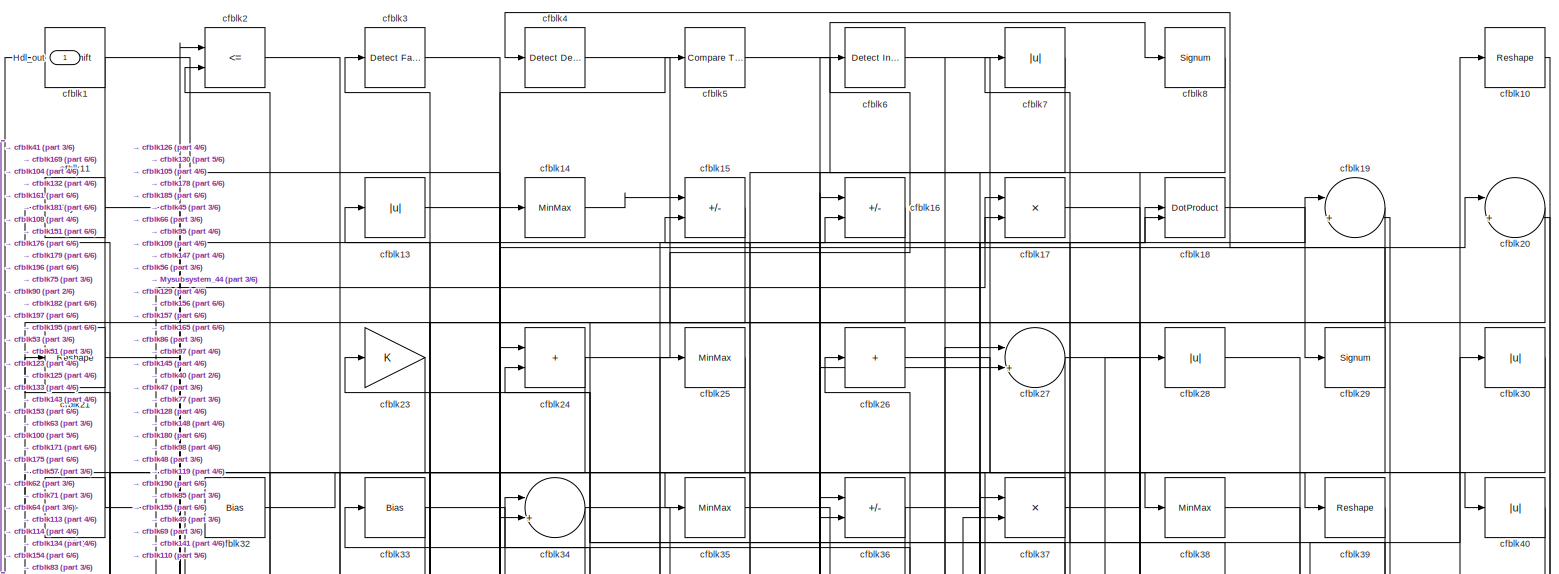
[diagram: root canvas - part 1/6, full width, top band]
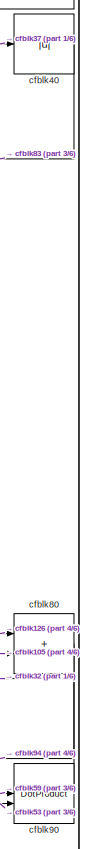
[diagram: root canvas - part 2/6, top right region]
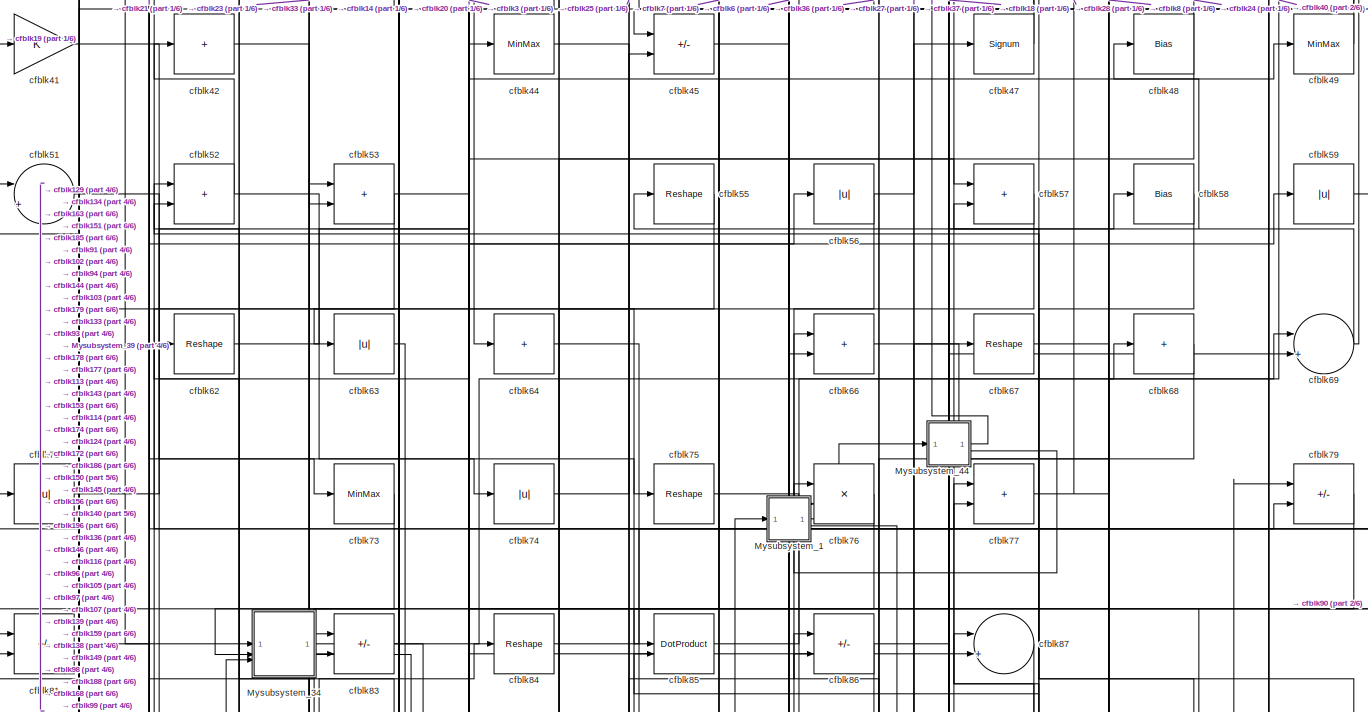
[diagram: root canvas - part 3/6, full width, top band]
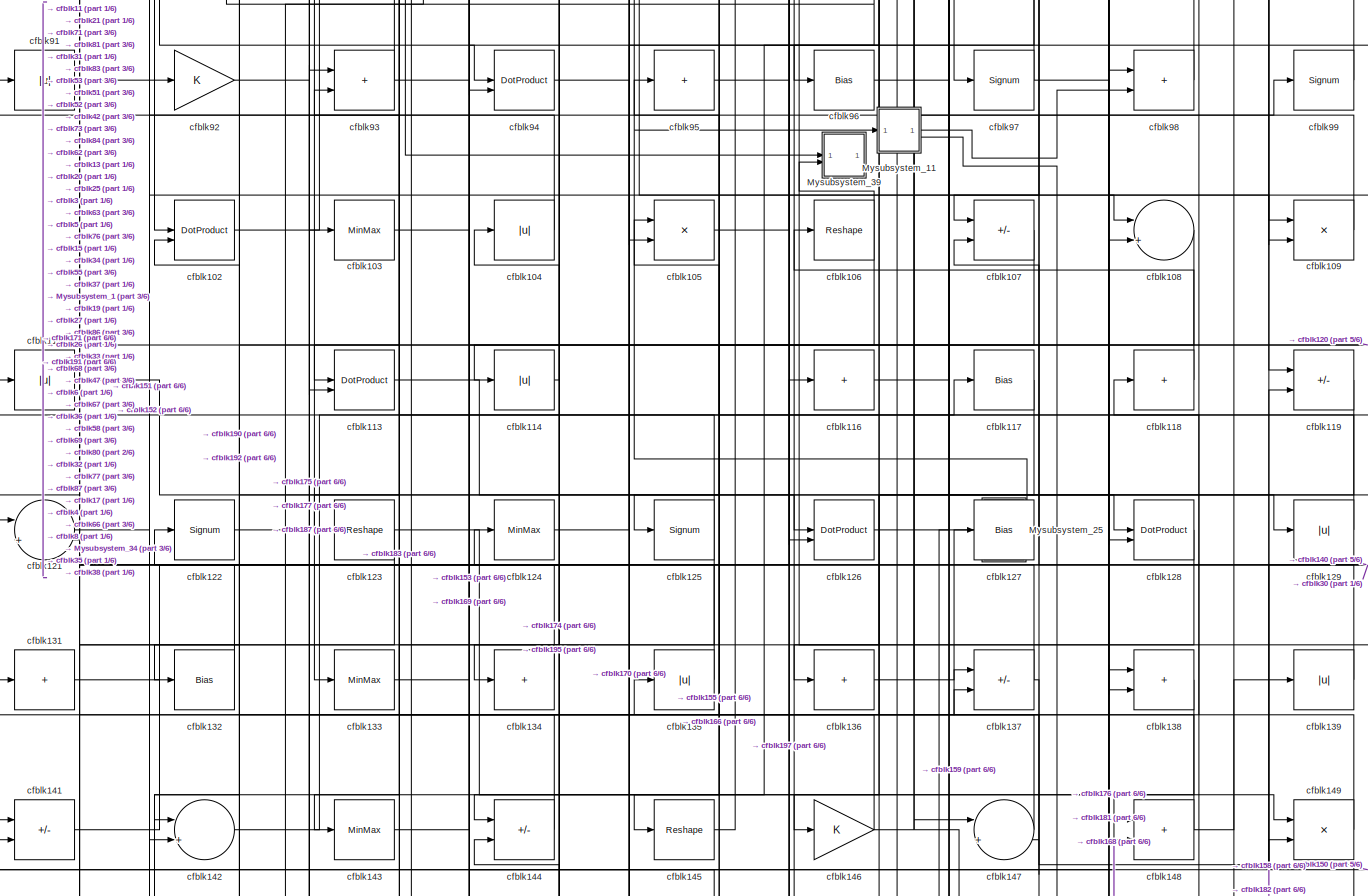
[diagram: root canvas - part 4/6, full width, middle band]
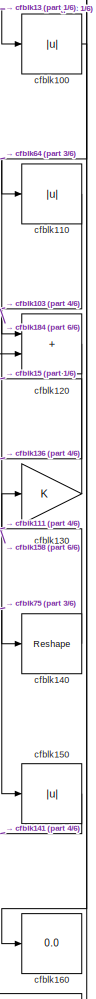
[diagram: root canvas - part 5/6, middle right region]
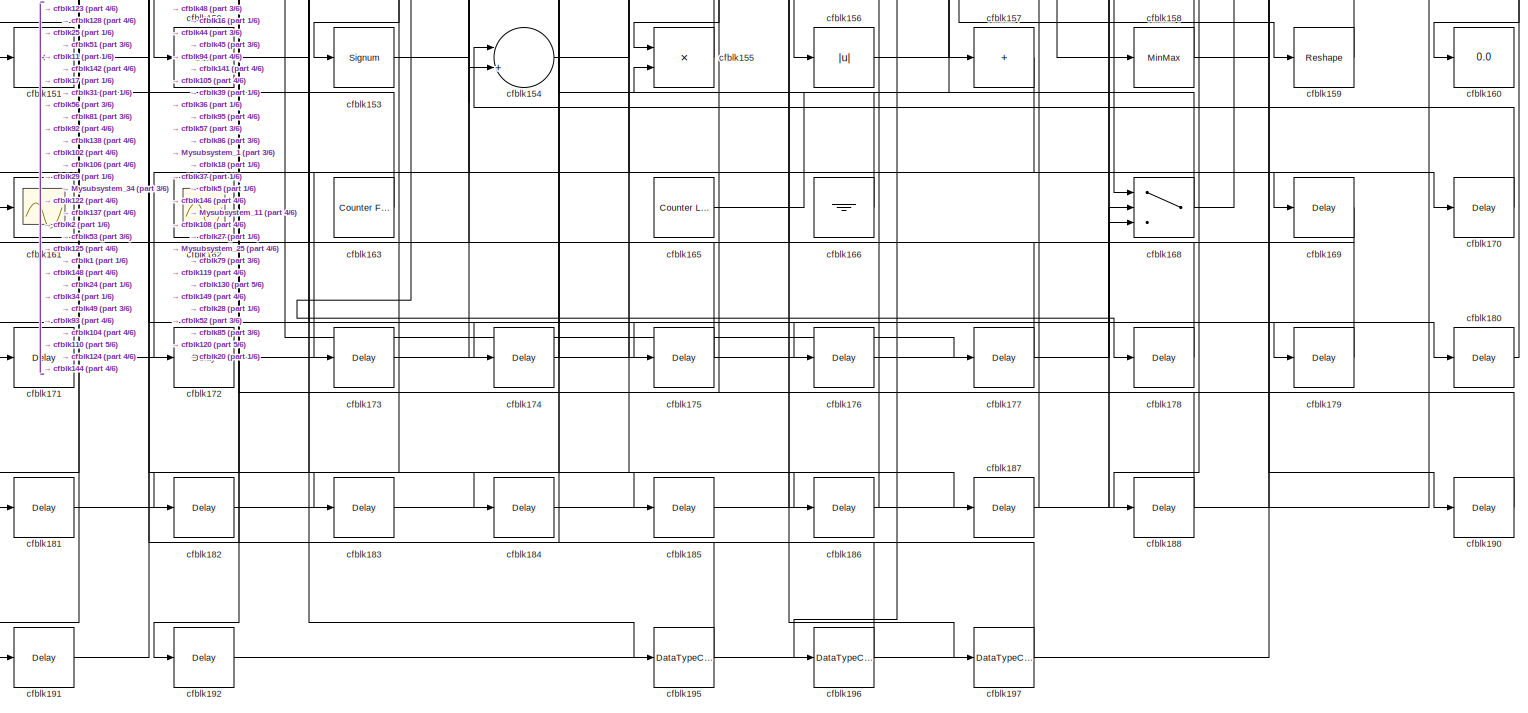
[diagram: root canvas - part 6/6, full width, bottom band]
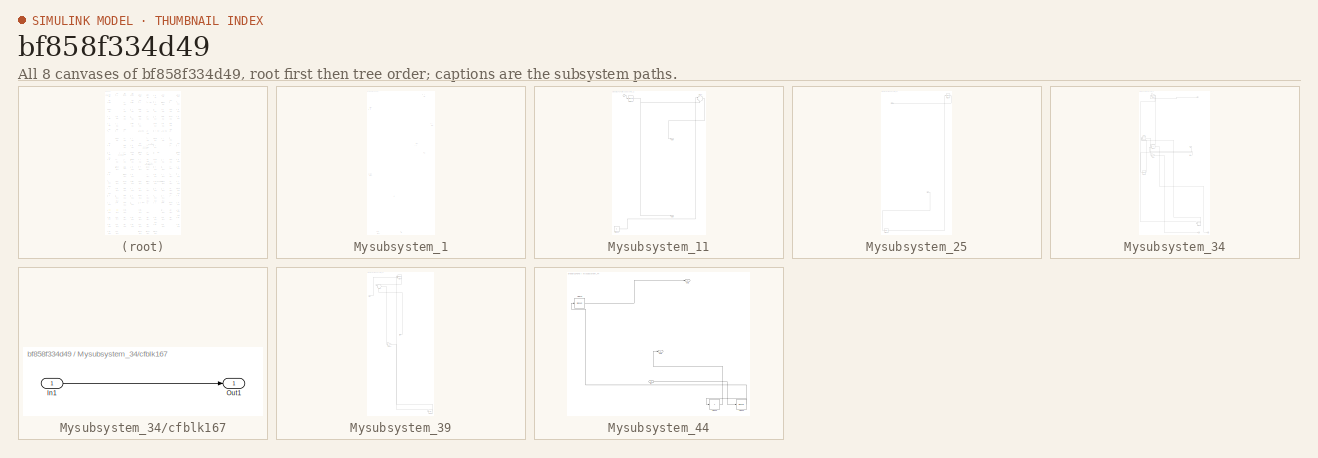
[diagram: thumbnail index - all 8 canvases of the model, root first then tree order]
MODEL slx_bf858f334d49
KIND model
CONFIG AbsTol = auto
CONFIG EnableMultiTasking = off
CONFIG FixedStep = auto
CONFIG MaxStep = auto
CONFIG MinStep = auto
CONFIG RelTol = 1e-3
CONFIG SampleTimeConstraint = Unconstrained
CONFIG SolverName = VariableStepAuto
CONFIG StartTime = 0.0
CONFIG StopTime = 10.0
BLOCK [Outport] Hdl_out
  OutDataTypeStr = uint8
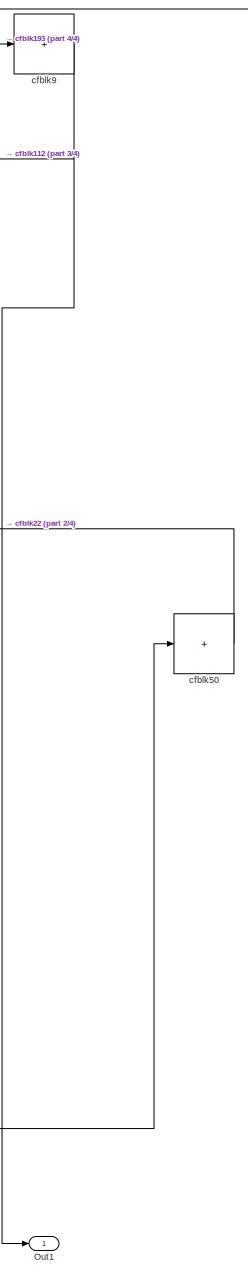
[diagram: Mysubsystem_1 - part 1/4, top right region]
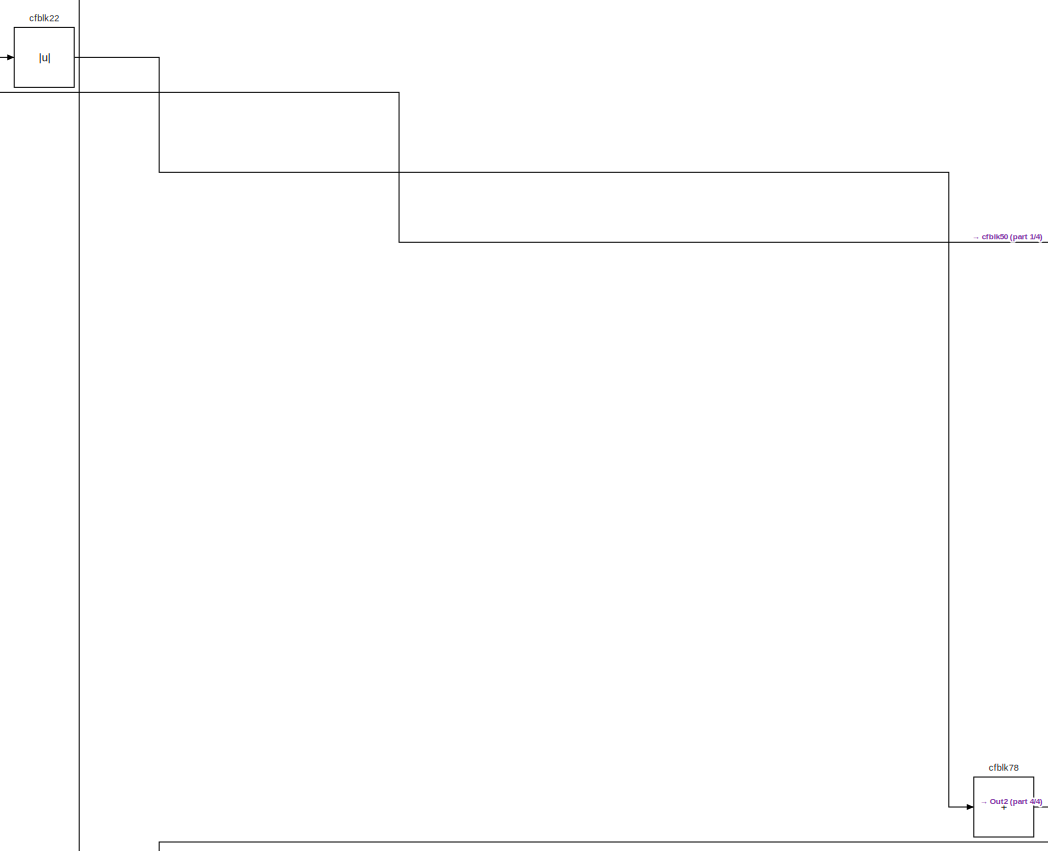
[diagram: Mysubsystem_1 - part 2/4, full width, top band]
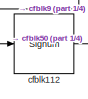
[diagram: Mysubsystem_1 - part 3/4, middle left region]
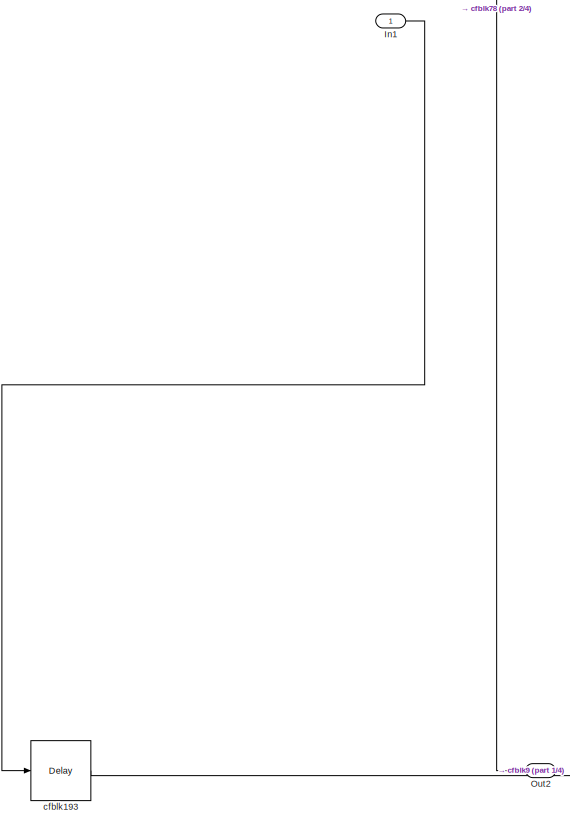
[diagram: Mysubsystem_1 - part 4/4, bottom left region]
BLOCK [SubSystem] Mysubsystem_1
  RTWFcnName = Mysubsystem_1
  RTWFcnNameOpts = User specified
  RTWFileNameOpts = Use function name
  RTWSystemCode = Reusable function
  TreatAsAtomicUnit = on
BLOCK [Inport] Mysubsystem_1/In1
BLOCK [Outport] Mysubsystem_1/Out1
BLOCK [Outport] Mysubsystem_1/Out2
  Port = 2
BLOCK [Signum] Mysubsystem_1/cfblk112
BLOCK [Delay] Mysubsystem_1/cfblk193
  InputPortMap = u0
  SampleTime = 1
BLOCK [Abs] Mysubsystem_1/cfblk22
  SaturateOnIntegerOverflow = off
BLOCK [Sum] Mysubsystem_1/cfblk50
  IconShape = rectangular
  Inputs = +
BLOCK [Sum] Mysubsystem_1/cfblk78
  IconShape = rectangular
  Inputs = +
BLOCK [Sum] Mysubsystem_1/cfblk9
  IconShape = rectangular
  Inputs = +
BLOCK [SubSystem] Mysubsystem_11
  RTWFcnName = Mysubsystem_11
  RTWFcnNameOpts = User specified
  RTWFileNameOpts = Use function name
  RTWSystemCode = Reusable function
  TreatAsAtomicUnit = on
BLOCK [Inport] Mysubsystem_11/In1
BLOCK [Outport] Mysubsystem_11/Out1
BLOCK [Outport] Mysubsystem_11/Out2
  Port = 2
BLOCK [Constant] Mysubsystem_11/cfblk164
  SampleTime = -1
BLOCK [Signum] Mysubsystem_11/cfblk65
BLOCK [Sum] Mysubsystem_11/cfblk70
  Inputs = |++
BLOCK [SubSystem] Mysubsystem_25
  RTWFcnName = Mysubsystem_25
  RTWFcnNameOpts = User specified
  RTWFileNameOpts = Use function name
  RTWSystemCode = Reusable function
  TreatAsAtomicUnit = on
BLOCK [Inport] Mysubsystem_25/In1
BLOCK [Outport] Mysubsystem_25/Out1
BLOCK [Delay] Mysubsystem_25/cfblk194
  InputPortMap = u0
  SampleTime = 1
BLOCK [Signum] Mysubsystem_25/cfblk60
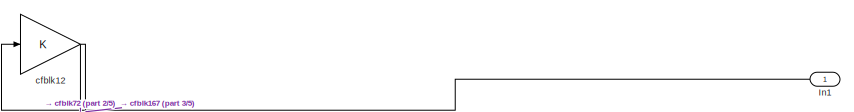
[diagram: Mysubsystem_34 - part 1/5, top center region]
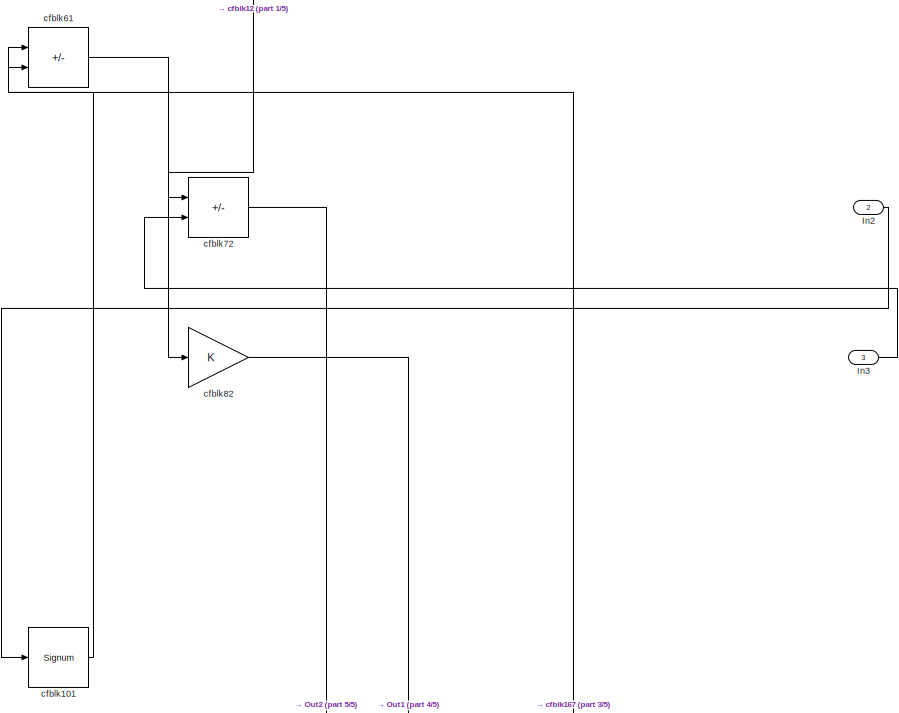
[diagram: Mysubsystem_34 - part 2/5, central region]
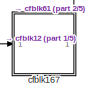
[diagram: Mysubsystem_34 - part 3/5, bottom right region]
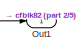
[diagram: Mysubsystem_34 - part 4/5, bottom right region]
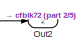
[diagram: Mysubsystem_34 - part 5/5, bottom right region]
BLOCK [SubSystem] Mysubsystem_34
  RTWFcnName = Mysubsystem_34
  RTWFcnNameOpts = User specified
  RTWFileNameOpts = Use function name
  RTWSystemCode = Reusable function
  TreatAsAtomicUnit = on
BLOCK [Inport] Mysubsystem_34/In1
BLOCK [Inport] Mysubsystem_34/In2
  Port = 2
BLOCK [Inport] Mysubsystem_34/In3
  Port = 3
BLOCK [Outport] Mysubsystem_34/Out1
BLOCK [Outport] Mysubsystem_34/Out2
  Port = 2
BLOCK [Signum] Mysubsystem_34/cfblk101
BLOCK [Gain] Mysubsystem_34/cfblk12
BLOCK [SubSystem] Mysubsystem_34/cfblk167
  LibrarySourceBlock = hdlsllib/Ports &\nSubsystems/Subsystem
BLOCK [Inport] Mysubsystem_34/cfblk167/In1
BLOCK [Outport] Mysubsystem_34/cfblk167/Out1
BLOCK [Sum] Mysubsystem_34/cfblk61
  IconShape = rectangular
  Inputs = +-
BLOCK [Sum] Mysubsystem_34/cfblk72
  IconShape = rectangular
  Inputs = +-
BLOCK [Gain] Mysubsystem_34/cfblk82
BLOCK [SubSystem] Mysubsystem_39
  RTWFcnName = Mysubsystem_39
  RTWFcnNameOpts = User specified
  RTWFileNameOpts = Use function name
  RTWSystemCode = Reusable function
  TreatAsAtomicUnit = on
BLOCK [Inport] Mysubsystem_39/In1
BLOCK [Inport] Mysubsystem_39/In2
  Port = 2
BLOCK [Gain] Mysubsystem_39/cfblk115
BLOCK [Delay] Mysubsystem_39/cfblk189
  InputPortMap = u0
  SampleTime = 1
BLOCK [DotProduct] Mysubsystem_39/cfblk46
  OutDataTypeStr = Inherit: Inherit via internal rule
BLOCK [Sum] Mysubsystem_39/cfblk54
  Inputs = |++
BLOCK [SubSystem] Mysubsystem_44
  RTWFcnName = Mysubsystem_44
  RTWFcnNameOpts = User specified
  RTWFileNameOpts = Use function name
  RTWSystemCode = Reusable function
  TreatAsAtomicUnit = on
BLOCK [Inport] Mysubsystem_44/In1
BLOCK [Outport] Mysubsystem_44/Out1
BLOCK [Outport] Mysubsystem_44/Out2
  Port = 2
BLOCK [Signum] Mysubsystem_44/cfblk43
BLOCK [Sum] Mysubsystem_44/cfblk88
  IconShape = rectangular
  Inputs = +
BLOCK [Signum] Mysubsystem_44/cfblk89
BLOCK [Reference] cfblk1  REF=hdlsllib/Logic and Bit
Operations/Bit Shift
  SourceBlock = hdlsllib/Logic and Bit\nOperations/Bit Shift
  SourceType = Bit Shift
BLOCK [Reshape] cfblk10
BLOCK [Abs] cfblk100
  OutDataTypeStr = uint8
  SaturateOnIntegerOverflow = off
BLOCK [DotProduct] cfblk102
  OutDataTypeStr = uint8
BLOCK [MinMax] cfblk103
  OutDataTypeStr = uint8
BLOCK [Abs] cfblk104
  OutDataTypeStr = uint8
  SaturateOnIntegerOverflow = off
BLOCK [Product] cfblk105
  Inputs = */
  OutDataTypeStr = uint8
  RndMeth = Zero
  SaturateOnIntegerOverflow = on
BLOCK [Reshape] cfblk106
BLOCK [Sum] cfblk107
  IconShape = rectangular
  Inputs = +-
  OutDataTypeStr = uint8
BLOCK [Sum] cfblk108
  Inputs = |++
  OutDataTypeStr = uint8
BLOCK [Product] cfblk109
  Inputs = */
  OutDataTypeStr = uint8
  RndMeth = Zero
  SaturateOnIntegerOverflow = on
BLOCK [Signum] cfblk11
BLOCK [Abs] cfblk110
  OutDataTypeStr = uint8
  SaturateOnIntegerOverflow = off
BLOCK [Abs] cfblk111
  OutDataTypeStr = uint8
  SaturateOnIntegerOverflow = off
BLOCK [DotProduct] cfblk113
  OutDataTypeStr = uint8
BLOCK [Abs] cfblk114
  OutDataTypeStr = uint8
  SaturateOnIntegerOverflow = off
BLOCK [Sum] cfblk116
  IconShape = rectangular
  Inputs = +
  OutDataTypeStr = uint8
BLOCK [Bias] cfblk117
  Bias = 0.0
  SaturateOnIntegerOverflow = off
BLOCK [Sum] cfblk118
  IconShape = rectangular
  Inputs = +
  OutDataTypeStr = uint8
BLOCK [Sum] cfblk119
  IconShape = rectangular
  Inputs = +-
  OutDataTypeStr = uint8
BLOCK [Sum] cfblk120
  IconShape = rectangular
  OutDataTypeStr = uint8
BLOCK [Sum] cfblk121
  Inputs = |++
  OutDataTypeStr = uint8
BLOCK [Signum] cfblk122
BLOCK [Reshape] cfblk123
BLOCK [MinMax] cfblk124
  OutDataTypeStr = uint8
BLOCK [Signum] cfblk125
BLOCK [DotProduct] cfblk126
  OutDataTypeStr = uint8
BLOCK [Bias] cfblk127
  Bias = 0.0
  SaturateOnIntegerOverflow = off
BLOCK [DotProduct] cfblk128
  OutDataTypeStr = uint8
BLOCK [Abs] cfblk129
  OutDataTypeStr = uint8
  SaturateOnIntegerOverflow = off
BLOCK [Abs] cfblk13
  OutDataTypeStr = uint8
  SaturateOnIntegerOverflow = off
BLOCK [Gain] cfblk130
  OutDataTypeStr = uint8
BLOCK [Sum] cfblk131
  IconShape = rectangular
  Inputs = +
  OutDataTypeStr = uint8
BLOCK [Bias] cfblk132
  Bias = 0.0
  SaturateOnIntegerOverflow = off
BLOCK [MinMax] cfblk133
  OutDataTypeStr = uint8
BLOCK [Sum] cfblk134
  IconShape = rectangular
  Inputs = +
  OutDataTypeStr = uint8
BLOCK [Abs] cfblk135
  OutDataTypeStr = uint8
  SaturateOnIntegerOverflow = off
BLOCK [Sum] cfblk136
  IconShape = rectangular
  Inputs = +
  OutDataTypeStr = uint8
BLOCK [Sum] cfblk137
  IconShape = rectangular
  Inputs = +-
  OutDataTypeStr = uint8
BLOCK [Sum] cfblk138
  IconShape = rectangular
  OutDataTypeStr = uint8
BLOCK [Abs] cfblk139
  OutDataTypeStr = uint8
  SaturateOnIntegerOverflow = off
BLOCK [MinMax] cfblk14
  OutDataTypeStr = uint8
BLOCK [Reshape] cfblk140
BLOCK [Sum] cfblk141
  IconShape = rectangular
  Inputs = +-
  OutDataTypeStr = uint8
BLOCK [Sum] cfblk142
  Inputs = |++
  OutDataTypeStr = uint8
BLOCK [MinMax] cfblk143
  OutDataTypeStr = uint8
BLOCK [Sum] cfblk144
  IconShape = rectangular
  Inputs = +-
  OutDataTypeStr = uint8
BLOCK [Reshape] cfblk145
BLOCK [Gain] cfblk146
  OutDataTypeStr = uint8
BLOCK [Sum] cfblk147
  Inputs = |++
  OutDataTypeStr = uint8
BLOCK [Sum] cfblk148
  IconShape = rectangular
  OutDataTypeStr = uint8
BLOCK [Product] cfblk149
  Inputs = */
  OutDataTypeStr = uint8
  RndMeth = Zero
  SaturateOnIntegerOverflow = on
BLOCK [Sum] cfblk15
  IconShape = rectangular
  Inputs = +-
  OutDataTypeStr = uint8
BLOCK [Abs] cfblk150
  OutDataTypeStr = uint8
  SaturateOnIntegerOverflow = off
BLOCK [Sum] cfblk151
  IconShape = rectangular
  Inputs = +
  OutDataTypeStr = uint8
BLOCK [Bias] cfblk152
  Bias = 0.0
  SaturateOnIntegerOverflow = off
BLOCK [Signum] cfblk153
BLOCK [Sum] cfblk154
  Inputs = |++
  OutDataTypeStr = uint8
BLOCK [Product] cfblk155
  Inputs = */
  OutDataTypeStr = uint8
  RndMeth = Zero
  SaturateOnIntegerOverflow = on
BLOCK [Abs] cfblk156
  OutDataTypeStr = uint8
  SaturateOnIntegerOverflow = off
BLOCK [Sum] cfblk157
  IconShape = rectangular
  Inputs = +
  OutDataTypeStr = uint8
BLOCK [MinMax] cfblk158
  OutDataTypeStr = uint8
BLOCK [Reshape] cfblk159
BLOCK [Sum] cfblk16
  IconShape = rectangular
  Inputs = +-
  OutDataTypeStr = uint8
BLOCK [Display] cfblk160
  Decimation = 1
BLOCK [Scope] cfblk161
  Floating = off
  NumInputPorts = 1
  ScopeSpecificationString = Simulink.scopes.TimeScopeBlockCfg('CurrentConfiguration', extmgr.ConfigurationSet(extmgr.Configuration('Core','General UI',true),extmgr.Configuration('Core','Source UI',true),extmgr.Configuration('Sources','WiredSimulink',true,'DataLoggingVariableName','ScopeData2','DataLoggingSaveFormat','Array','DataLoggingLimitDataPoints',true,'DataLoggingDecimation','1'),extmgr.Configuration('Visuals','Time Do...<+868ch>
BLOCK [Scope] cfblk162
  Floating = on
  NumInputPorts = 1
  ScopeSpecificationString = Simulink.scopes.TimeScopeBlockCfg('CurrentConfiguration', extmgr.ConfigurationSet(extmgr.Configuration('Core','General UI',true,'FigureColor',[0.156862745098039 0.156862745098039 0.156862745098039]),extmgr.Configuration('Core','Source UI',true),extmgr.Configuration('Sources','WiredSimulink',true,'DataLoggingVariableName','ScopeData1','DataLoggingSaveFormat','StructureWithTime','DataLoggingLimitDat...<+2713ch>
BLOCK [Reference] cfblk163  REF=hdlsllib/Sources/Counter
Free-Running
  SourceBlock = hdlsllib/Sources/Counter\nFree-Running
  SourceType = Counter Free-Running
BLOCK [Reference] cfblk165  REF=hdlsllib/Sources/Counter
Limited
  SourceBlock = hdlsllib/Sources/Counter\nLimited
  SourceType = Counter Limited
BLOCK [Ground] cfblk166
BLOCK [Switch] cfblk168
  InputSameDT = off
  OutDataTypeStr = uint8
  SaturateOnIntegerOverflow = off
BLOCK [Delay] cfblk169
  InputPortMap = u0
  SampleTime = 1
BLOCK [Product] cfblk17
  Inputs = */
  OutDataTypeStr = uint8
  RndMeth = Zero
  SaturateOnIntegerOverflow = on
BLOCK [Delay] cfblk170
  InputPortMap = u0
  SampleTime = 1
BLOCK [Delay] cfblk171
  InputPortMap = u0
  SampleTime = 1
BLOCK [Delay] cfblk172
  InputPortMap = u0
  SampleTime = 1
BLOCK [Delay] cfblk173
  InputPortMap = u0
  SampleTime = 1
BLOCK [Delay] cfblk174
  InputPortMap = u0
  SampleTime = 1
BLOCK [Delay] cfblk175
  InputPortMap = u0
  SampleTime = 1
BLOCK [Delay] cfblk176
  InputPortMap = u0
  SampleTime = 1
BLOCK [Delay] cfblk177
  InputPortMap = u0
  SampleTime = 1
BLOCK [Delay] cfblk178
  InputPortMap = u0
  SampleTime = 1
BLOCK [Delay] cfblk179
  InputPortMap = u0
  SampleTime = 1
BLOCK [DotProduct] cfblk18
  OutDataTypeStr = uint8
BLOCK [Delay] cfblk180
  InputPortMap = u0
  SampleTime = 1
BLOCK [Delay] cfblk181
  InputPortMap = u0
  SampleTime = 1
BLOCK [Delay] cfblk182
  InputPortMap = u0
  SampleTime = 1
BLOCK [Delay] cfblk183
  InputPortMap = u0
  SampleTime = 1
BLOCK [Delay] cfblk184
  InputPortMap = u0
  SampleTime = 1
BLOCK [Delay] cfblk185
  InputPortMap = u0
  SampleTime = 1
BLOCK [Delay] cfblk186
  InputPortMap = u0
  SampleTime = 1
BLOCK [Delay] cfblk187
  InputPortMap = u0
  SampleTime = 1
BLOCK [Delay] cfblk188
  InputPortMap = u0
  SampleTime = 1
BLOCK [Sum] cfblk19
  Inputs = |++
  OutDataTypeStr = uint8
BLOCK [Delay] cfblk190
  InputPortMap = u0
  SampleTime = 1
BLOCK [Delay] cfblk191
  InputPortMap = u0
  SampleTime = 1
BLOCK [Delay] cfblk192
  InputPortMap = u0
  SampleTime = 1
BLOCK [DataTypeConversion] cfblk195
  OutDataTypeStr = uint8
  RndMeth = Floor
  SaturateOnIntegerOverflow = off
BLOCK [DataTypeConversion] cfblk196
  OutDataTypeStr = uint8
  RndMeth = Floor
  SaturateOnIntegerOverflow = off
BLOCK [DataTypeConversion] cfblk197
  OutDataTypeStr = uint8
  RndMeth = Floor
  SaturateOnIntegerOverflow = off
BLOCK [RelationalOperator] cfblk2
  InputSameDT = off
  Operator = <=
  OutDataTypeStr = boolean
BLOCK [Sum] cfblk20
  Inputs = |++
  OutDataTypeStr = uint8
BLOCK [Reshape] cfblk21
BLOCK [Gain] cfblk23
  OutDataTypeStr = uint8
BLOCK [Sum] cfblk24
  IconShape = rectangular
  OutDataTypeStr = uint8
BLOCK [MinMax] cfblk25
  OutDataTypeStr = uint8
BLOCK [Sum] cfblk26
  IconShape = rectangular
  Inputs = +
  OutDataTypeStr = uint8
BLOCK [Sum] cfblk27
  Inputs = |++
  OutDataTypeStr = uint8
BLOCK [Abs] cfblk28
  OutDataTypeStr = uint8
  SaturateOnIntegerOverflow = off
BLOCK [Signum] cfblk29
BLOCK [Reference] cfblk3  REF=hdlsllib/Logic and Bit
Operations/Detect Fall
Nonpositive
  SourceBlock = hdlsllib/Logic and Bit\nOperations/Detect Fall\nNonpositive
  SourceType = Detect Fall Nonpositive
BLOCK [Abs] cfblk30
  OutDataTypeStr = uint8
  SaturateOnIntegerOverflow = off
BLOCK [Sum] cfblk31
  IconShape = rectangular
  Inputs = +
  OutDataTypeStr = uint8
BLOCK [Bias] cfblk32
  Bias = 0.0
  SaturateOnIntegerOverflow = off
BLOCK [Bias] cfblk33
  Bias = 0.0
  SaturateOnIntegerOverflow = off
BLOCK [Sum] cfblk34
  Inputs = |++
  OutDataTypeStr = uint8
BLOCK [MinMax] cfblk35
  OutDataTypeStr = uint8
BLOCK [Sum] cfblk36
  IconShape = rectangular
  Inputs = +-
  OutDataTypeStr = uint8
BLOCK [Product] cfblk37
  Inputs = */
  OutDataTypeStr = uint8
  RndMeth = Zero
  SaturateOnIntegerOverflow = on
BLOCK [MinMax] cfblk38
  OutDataTypeStr = uint8
BLOCK [Reshape] cfblk39
BLOCK [Reference] cfblk4  REF=simulink/Logic and Bit
Operations/Detect
Decrease
  LibrarySourceBlock = hdlsllib/Logic and Bit\nOperations/Detect\nDecrease
  SourceBlock = simulink/Logic and Bit\nOperations/Detect\nDecrease
  SourceType = Detect Decrease
BLOCK [Abs] cfblk40
  OutDataTypeStr = uint8
  SaturateOnIntegerOverflow = off
BLOCK [Gain] cfblk41
  OutDataTypeStr = uint8
BLOCK [Sum] cfblk42
  IconShape = rectangular
  Inputs = +
  OutDataTypeStr = uint8
BLOCK [MinMax] cfblk44
  OutDataTypeStr = uint8
BLOCK [Sum] cfblk45
  IconShape = rectangular
  Inputs = +-
  OutDataTypeStr = uint8
BLOCK [Signum] cfblk47
BLOCK [Bias] cfblk48
  Bias = 0.0
  SaturateOnIntegerOverflow = off
BLOCK [MinMax] cfblk49
  OutDataTypeStr = uint8
BLOCK [Reference] cfblk5  REF=hdlsllib/Logic and Bit
Operations/Compare
To Constant
  SourceBlock = hdlsllib/Logic and Bit\nOperations/Compare\nTo Constant
  SourceType = Compare To Constant
BLOCK [Sum] cfblk51
  Inputs = |++
  OutDataTypeStr = uint8
BLOCK [Sum] cfblk52
  IconShape = rectangular
  OutDataTypeStr = uint8
BLOCK [Sum] cfblk53
  IconShape = rectangular
  OutDataTypeStr = uint8
BLOCK [Reshape] cfblk55
BLOCK [Abs] cfblk56
  OutDataTypeStr = uint8
  SaturateOnIntegerOverflow = off
BLOCK [Sum] cfblk57
  IconShape = rectangular
  OutDataTypeStr = uint8
BLOCK [Bias] cfblk58
  Bias = 0.0
  SaturateOnIntegerOverflow = off
BLOCK [Abs] cfblk59
  OutDataTypeStr = uint8
  SaturateOnIntegerOverflow = off
BLOCK [Reference] cfblk6  REF=simulink/Logic and Bit
Operations/Detect
Increase
  LibrarySourceBlock = hdlsllib/Logic and Bit\nOperations/Detect\nIncrease
  SourceBlock = simulink/Logic and Bit\nOperations/Detect\nIncrease
  SourceType = Detect Increase
BLOCK [Reshape] cfblk62
BLOCK [Abs] cfblk63
  OutDataTypeStr = uint8
  SaturateOnIntegerOverflow = off
BLOCK [Sum] cfblk64
  IconShape = rectangular
  Inputs = +
  OutDataTypeStr = uint8
BLOCK [Sum] cfblk66
  IconShape = rectangular
  OutDataTypeStr = uint8
BLOCK [Reshape] cfblk67
BLOCK [Sum] cfblk68
  IconShape = rectangular
  Inputs = +
  OutDataTypeStr = uint8
BLOCK [Sum] cfblk69
  Inputs = |++
  OutDataTypeStr = uint8
BLOCK [Abs] cfblk7
  OutDataTypeStr = uint8
  SaturateOnIntegerOverflow = off
BLOCK [Abs] cfblk71
  OutDataTypeStr = uint8
  SaturateOnIntegerOverflow = off
BLOCK [MinMax] cfblk73
  OutDataTypeStr = uint8
BLOCK [Abs] cfblk74
  OutDataTypeStr = uint8
  SaturateOnIntegerOverflow = off
BLOCK [Reshape] cfblk75
BLOCK [Product] cfblk76
  Inputs = */
  OutDataTypeStr = uint8
  RndMeth = Zero
  SaturateOnIntegerOverflow = on
BLOCK [Sum] cfblk77
  IconShape = rectangular
  OutDataTypeStr = uint8
BLOCK [Sum] cfblk79
  IconShape = rectangular
  Inputs = +-
  OutDataTypeStr = uint8
BLOCK [Signum] cfblk8
BLOCK [Sum] cfblk80
  IconShape = rectangular
  OutDataTypeStr = uint8
BLOCK [Sum] cfblk81
  IconShape = rectangular
  Inputs = +-
  OutDataTypeStr = uint8
BLOCK [Sum] cfblk83
  IconShape = rectangular
  Inputs = +-
  OutDataTypeStr = uint8
BLOCK [Reshape] cfblk84
BLOCK [DotProduct] cfblk85
  OutDataTypeStr = uint8
BLOCK [Sum] cfblk86
  IconShape = rectangular
  Inputs = +-
  OutDataTypeStr = uint8
BLOCK [Sum] cfblk87
  Inputs = |++
  OutDataTypeStr = uint8
BLOCK [DotProduct] cfblk90
  OutDataTypeStr = uint8
BLOCK [Abs] cfblk91
  OutDataTypeStr = uint8
  SaturateOnIntegerOverflow = off
BLOCK [Gain] cfblk92
  OutDataTypeStr = uint8
BLOCK [Sum] cfblk93
  IconShape = rectangular
  OutDataTypeStr = uint8
BLOCK [DotProduct] cfblk94
  OutDataTypeStr = uint8
BLOCK [Sum] cfblk95
  IconShape = rectangular
  Inputs = +
  OutDataTypeStr = uint8
BLOCK [Bias] cfblk96
  Bias = 0.0
  SaturateOnIntegerOverflow = off
BLOCK [Signum] cfblk97
BLOCK [Sum] cfblk98
  IconShape = rectangular
  OutDataTypeStr = uint8
BLOCK [Signum] cfblk99
LINE Mysubsystem_1/In1:1 -> Mysubsystem_1/cfblk193:1
LINE Mysubsystem_1/cfblk112:1 -> Mysubsystem_1/cfblk50:1
LINE Mysubsystem_1/cfblk193:1 -> Mysubsystem_1/cfblk9:1
LINE Mysubsystem_1/cfblk22:1 -> Mysubsystem_1/cfblk78:1
LINE Mysubsystem_1/cfblk50:1 -> Mysubsystem_1/cfblk22:1
LINE Mysubsystem_1/cfblk78:1 -> Mysubsystem_1/Out2:1
NET Mysubsystem_1/cfblk9:1 -> Mysubsystem_1/Out1:1, Mysubsystem_1/cfblk112:1
LINE Mysubsystem_11/In1:1 -> Mysubsystem_11/cfblk65:1
LINE Mysubsystem_11/cfblk164:1 -> Mysubsystem_11/cfblk70:1
NET Mysubsystem_11/cfblk65:1 -> Mysubsystem_11/Out2:1, Mysubsystem_11/cfblk70:2
LINE Mysubsystem_11/cfblk70:1 -> Mysubsystem_11/Out1:1
LINE Mysubsystem_11:1 -> cfblk98:2
LINE Mysubsystem_11:2 -> cfblk158:1
LINE Mysubsystem_1:1 -> Mysubsystem_44:1
LINE Mysubsystem_1:2 -> cfblk196:1
LINE Mysubsystem_25/In1:1 -> Mysubsystem_25/cfblk194:1
LINE Mysubsystem_25/cfblk194:1 -> Mysubsystem_25/cfblk60:1
LINE Mysubsystem_25/cfblk60:1 -> Mysubsystem_25/Out1:1
NET Mysubsystem_25:1 -> Mysubsystem_11:1, cfblk113:1
LINE Mysubsystem_34/In1:1 -> Mysubsystem_34/cfblk12:1
LINE Mysubsystem_34/In2:1 -> Mysubsystem_34/cfblk101:1
LINE Mysubsystem_34/In3:1 -> Mysubsystem_34/cfblk72:2
LINE Mysubsystem_34/cfblk101:1 -> Mysubsystem_34/cfblk61:2
NET Mysubsystem_34/cfblk12:1 -> Mysubsystem_34/cfblk167:1, Mysubsystem_34/cfblk72:1
LINE Mysubsystem_34/cfblk167/In1:1 -> Mysubsystem_34/cfblk167/Out1:1
LINE Mysubsystem_34/cfblk167:1 -> Mysubsystem_34/cfblk61:1
LINE Mysubsystem_34/cfblk61:1 -> Mysubsystem_34/cfblk82:1
LINE Mysubsystem_34/cfblk72:1 -> Mysubsystem_34/Out2:1
LINE Mysubsystem_34/cfblk82:1 -> Mysubsystem_34/Out1:1
LINE Mysubsystem_34:1 -> cfblk177:1
LINE Mysubsystem_34:2 -> cfblk178:1
LINE Mysubsystem_39/In1:1 -> Mysubsystem_39/cfblk46:2
LINE Mysubsystem_39/In2:1 -> Mysubsystem_39/cfblk54:2
LINE Mysubsystem_39/cfblk115:1 -> Mysubsystem_39/cfblk189:1
LINE Mysubsystem_39/cfblk189:1 -> Mysubsystem_39/cfblk46:1
LINE Mysubsystem_39/cfblk46:1 -> Mysubsystem_39/cfblk54:1
LINE Mysubsystem_39/cfblk54:1 -> Mysubsystem_39/cfblk115:1
LINE Mysubsystem_44/In1:1 -> Mysubsystem_44/cfblk89:1
LINE Mysubsystem_44/cfblk43:1 -> Mysubsystem_44/Out1:1
LINE Mysubsystem_44/cfblk88:1 -> Mysubsystem_44/Out2:1
NET Mysubsystem_44/cfblk89:1 -> Mysubsystem_44/cfblk43:1, Mysubsystem_44/cfblk88:1
LINE Mysubsystem_44:1 -> cfblk37:2
LINE Mysubsystem_44:2 -> cfblk66:1
LINE cfblk100:1 -> cfblk160:1
LINE cfblk102:1 -> cfblk84:1
LINE cfblk103:1 -> cfblk120:1
LINE cfblk104:1 -> cfblk11:1
NET cfblk105:1 -> cfblk19:1, cfblk80:2
NET cfblk106:1 -> Mysubsystem_39:2, cfblk192:1
LINE cfblk107:1 -> cfblk121:1
LINE cfblk108:1 -> cfblk125:1
LINE cfblk109:1 -> cfblk33:1
LINE cfblk10:1 -> cfblk110:1
LINE cfblk110:1 -> cfblk184:1
LINE cfblk111:1 -> cfblk126:1
NET cfblk113:1 -> cfblk128:1, cfblk87:2
LINE cfblk114:1 -> cfblk34:1
LINE cfblk116:1 -> cfblk69:2
LINE cfblk117:1 -> cfblk146:1
LINE cfblk118:1 -> cfblk106:1
NET cfblk119:1 -> cfblk132:1, cfblk142:1
LINE cfblk11:1 -> cfblk179:1
LINE cfblk120:1 -> cfblk136:1
LINE cfblk121:1 -> cfblk99:1
LINE cfblk122:1 -> cfblk175:1
NET cfblk123:1 -> cfblk168:1, cfblk191:1
LINE cfblk124:1 -> cfblk86:1
NET cfblk125:1 -> cfblk183:1, cfblk3:1
LINE cfblk126:1 -> cfblk80:1
LINE cfblk127:1 -> cfblk107:2
LINE cfblk128:1 -> cfblk171:1
LINE cfblk129:1 -> cfblk71:1
LINE cfblk130:1 -> cfblk15:2
LINE cfblk131:1 -> cfblk116:1
LINE cfblk132:1 -> cfblk21:1
NET cfblk133:1 -> cfblk13:1, cfblk5:1
LINE cfblk134:1 -> cfblk81:2
LINE cfblk135:1 -> cfblk91:1
NET cfblk136:1 -> cfblk127:1, cfblk47:1
NET cfblk137:1 -> cfblk122:1, cfblk147:2
LINE cfblk138:1 -> cfblk152:1
LINE cfblk139:1 -> cfblk87:1
LINE cfblk13:1 -> cfblk100:1
LINE cfblk140:1 -> cfblk111:1
LINE cfblk141:1 -> cfblk30:1
LINE cfblk142:1 -> cfblk117:1
LINE cfblk143:1 -> cfblk76:1
LINE cfblk144:1 -> cfblk52:2
LINE cfblk145:1 -> Mysubsystem_1:1
NET cfblk146:1 -> cfblk159:1, cfblk67:1, cfblk93:2
LINE cfblk147:1 -> cfblk26:1
NET cfblk148:1 -> cfblk121:2, cfblk139:1, cfblk95:1
NET cfblk149:1 -> cfblk118:1, cfblk131:1, cfblk135:1
LINE cfblk14:1 -> cfblk15:1
LINE cfblk150:1 -> cfblk141:1
NET cfblk151:1 -> cfblk17:2, cfblk56:1, cfblk92:1
LINE cfblk152:1 -> cfblk137:1
NET cfblk153:1 -> cfblk148:2, cfblk49:1
LINE cfblk154:1 -> cfblk16:2
LINE cfblk155:1 -> cfblk141:2
LINE cfblk156:1 -> cfblk18:1
NET cfblk157:1 -> cfblk172:1, cfblk173:1
NET cfblk158:1 -> Mysubsystem_25:1, cfblk130:1
NET cfblk159:1 -> cfblk52:1, cfblk85:2
LINE cfblk15:1 -> cfblk134:1
LINE cfblk163:1 -> cfblk51:1
LINE cfblk165:1 -> cfblk37:1
LINE cfblk166:1 -> cfblk105:1
NET cfblk168:1 -> cfblk124:1, cfblk79:1
LINE cfblk169:1 -> cfblk1:1
LINE cfblk16:1 -> cfblk153:1
LINE cfblk170:1 -> cfblk154:1
LINE cfblk171:1 -> cfblk34:2
LINE cfblk172:1 -> cfblk45:2
LINE cfblk173:1 -> cfblk168:2
LINE cfblk174:1 -> cfblk144:2
LINE cfblk175:1 -> cfblk24:1
LINE cfblk176:1 -> cfblk138:1
LINE cfblk177:1 -> cfblk93:1
LINE cfblk178:1 -> cfblk16:1
LINE cfblk179:1 -> cfblk53:1
LINE cfblk17:1 -> cfblk148:1
LINE cfblk180:1 -> cfblk20:2
LINE cfblk181:1 -> cfblk108:2
LINE cfblk182:1 -> cfblk119:2
LINE cfblk183:1 -> cfblk168:3
LINE cfblk184:1 -> cfblk120:2
LINE cfblk185:1 -> cfblk36:1
LINE cfblk186:1 -> cfblk86:2
LINE cfblk187:1 -> cfblk137:2
LINE cfblk188:1 -> cfblk155:2
LINE cfblk18:1 -> cfblk29:1
LINE cfblk190:1 -> cfblk102:2
LINE cfblk191:1 -> cfblk142:2
LINE cfblk192:1 -> cfblk149:2
LINE cfblk195:1 -> cfblk104:1
LINE cfblk196:1 -> cfblk2:1
LINE cfblk197:1 -> cfblk2:2
LINE cfblk19:1 -> cfblk41:1
LINE cfblk1:1 -> cfblk154:2
LINE cfblk20:1 -> cfblk123:1
LINE cfblk21:1 -> cfblk75:1
LINE cfblk23:1 -> cfblk53:2
NET cfblk24:1 -> cfblk63:1, cfblk8:1
NET cfblk25:1 -> cfblk143:1, cfblk161:1
LINE cfblk26:1 -> cfblk39:1
NET cfblk27:1 -> cfblk180:1, cfblk181:1
LINE cfblk28:1 -> cfblk190:1
NET cfblk29:1 -> cfblk182:1, cfblk4:1
LINE cfblk2:1 -> cfblk195:1
NET cfblk30:1 -> cfblk31:1, cfblk36:2
NET cfblk31:1 -> Hdl_out:1, cfblk108:1, cfblk176:1
LINE cfblk32:1 -> cfblk97:1
NET cfblk33:1 -> cfblk51:2, cfblk64:1
NET cfblk34:1 -> cfblk113:2, cfblk126:2
LINE cfblk35:1 -> cfblk109:1
NET cfblk36:1 -> cfblk129:1, cfblk85:1
NET cfblk37:1 -> cfblk145:1, cfblk35:1, cfblk40:1
LINE cfblk38:1 -> cfblk119:1
LINE cfblk39:1 -> cfblk155:1
LINE cfblk3:1 -> cfblk57:1
LINE cfblk40:1 -> cfblk83:1
LINE cfblk41:1 -> cfblk73:1
LINE cfblk42:1 -> cfblk103:1
LINE cfblk44:1 -> cfblk186:1
LINE cfblk45:1 -> cfblk6:1
LINE cfblk47:1 -> cfblk23:1
NET cfblk48:1 -> cfblk174:1, cfblk24:2, cfblk76:2
LINE cfblk49:1 -> cfblk7:1
LINE cfblk4:1 -> cfblk98:1
LINE cfblk51:1 -> cfblk94:1
NET cfblk52:1 -> cfblk42:1, cfblk74:1
NET cfblk53:1 -> cfblk102:1, cfblk90:2
LINE cfblk55:1 -> cfblk114:1
NET cfblk56:1 -> cfblk27:1, cfblk81:1
LINE cfblk57:1 -> cfblk156:1
LINE cfblk58:1 -> cfblk107:1
LINE cfblk59:1 -> cfblk90:1
LINE cfblk5:1 -> cfblk157:1
LINE cfblk62:1 -> cfblk20:1
LINE cfblk63:1 -> Mysubsystem_39:1
LINE cfblk64:1 -> cfblk150:1
LINE cfblk66:1 -> cfblk138:2
LINE cfblk67:1 -> cfblk149:1
LINE cfblk68:1 -> cfblk96:1
NET cfblk69:1 -> cfblk19:2, cfblk48:1, cfblk57:2
NET cfblk6:1 -> cfblk147:1, cfblk38:1
NET cfblk71:1 -> cfblk14:1, cfblk44:1, cfblk79:2
LINE cfblk73:1 -> cfblk133:1
LINE cfblk74:1 -> cfblk68:1
LINE cfblk75:1 -> cfblk140:1
LINE cfblk76:1 -> Mysubsystem_34:2
NET cfblk77:1 -> cfblk28:1, cfblk69:1
NET cfblk79:1 -> cfblk151:1, cfblk188:1
LINE cfblk7:1 -> cfblk45:1
LINE cfblk80:1 -> cfblk94:2
LINE cfblk81:1 -> cfblk185:1
NET cfblk83:1 -> cfblk25:1, cfblk59:1
LINE cfblk84:1 -> cfblk77:1
LINE cfblk85:1 -> cfblk10:1
NET cfblk86:1 -> Mysubsystem_34:3, cfblk144:1, cfblk18:2
LINE cfblk87:1 -> cfblk105:2
NET cfblk8:1 -> cfblk128:2, cfblk66:2
LINE cfblk90:1 -> cfblk32:1
LINE cfblk91:1 -> cfblk83:2
LINE cfblk92:1 -> cfblk187:1
NET cfblk93:1 -> cfblk169:1, cfblk62:1
LINE cfblk94:1 -> cfblk170:1
NET cfblk95:1 -> cfblk197:1, cfblk27:2
LINE cfblk96:1 -> cfblk58:1
NET cfblk97:1 -> cfblk109:2, cfblk77:2
NET cfblk98:1 -> Mysubsystem_34:1, cfblk17:1
LINE cfblk99:1 -> cfblk55:1
note: NET lines group one-source signal fan-out (src -> all destinations, sorted); 1:1 wires keep LINE
